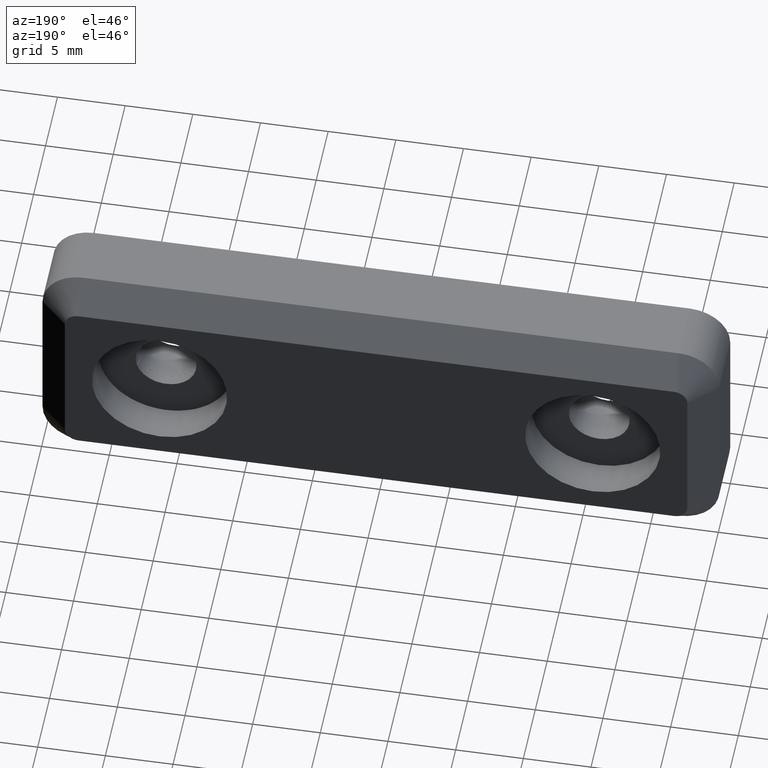
[diagram: clean part render]
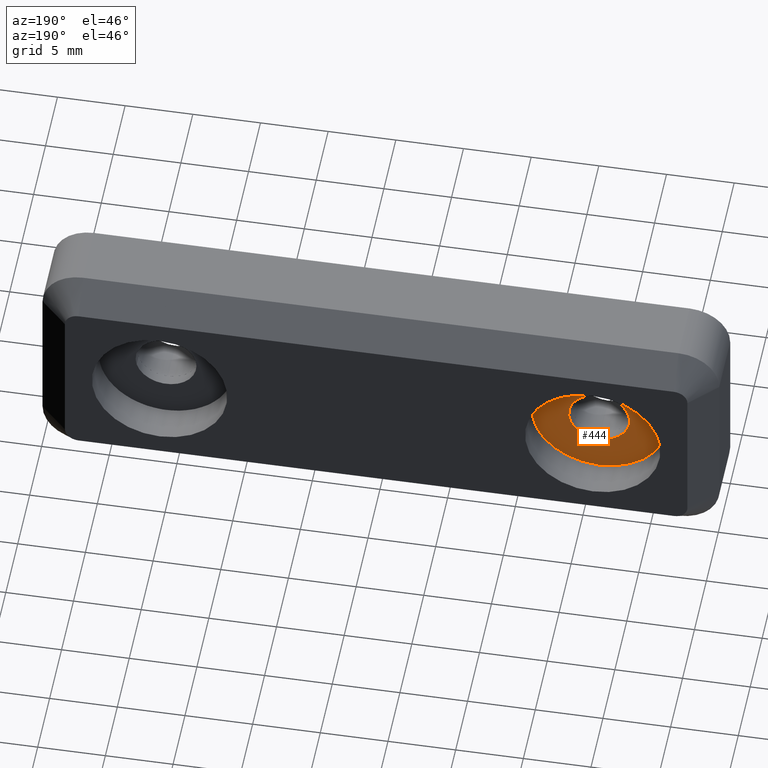
[diagram: same view with one face highlighted and labeled with its STEP entity id]
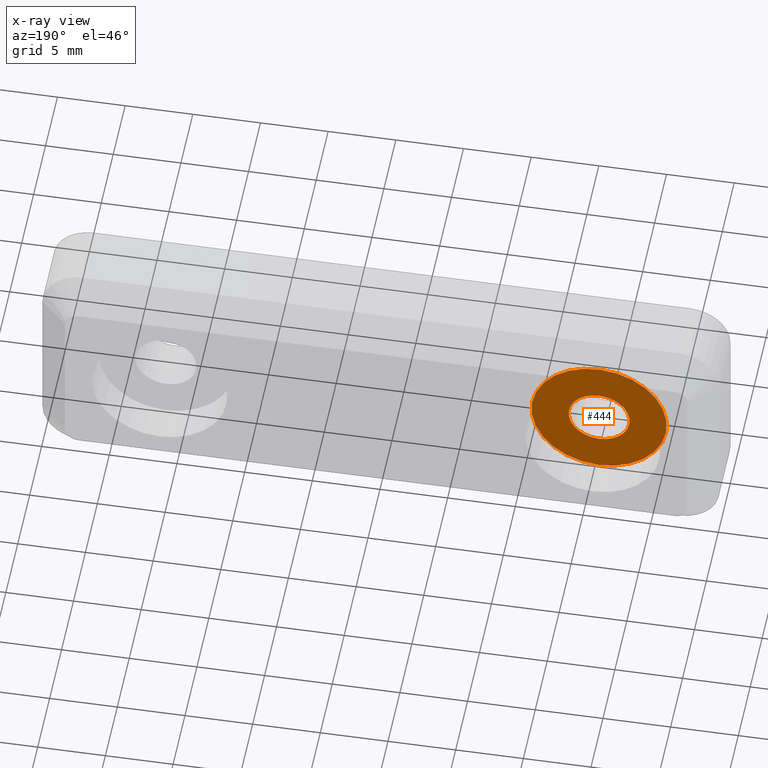
[diagram: x-ray of the same camera — body ghosted, the highlighted face saturated]
A machine part, auxiliary view. The second image highlights one B-rep face of the part: STEP entity #444.
The next image is the same camera in x-ray: the body ghosted, the highlighted face saturated — about 0% of this face is hidden behind the body in this view.
In plain terms, the highlighted planar face has unit normal (-0, 1, -0).
Its self-contained STEP definition (entity closure, byte-faithful):
#60=FACE_BOUND('',#129,.T.);
#88=FACE_OUTER_BOUND('',#128,.T.);
#128=EDGE_LOOP('',(#400));
#129=EDGE_LOOP('',(#401));
#153=CIRCLE('',#496,2.25);
#154=CIRCLE('',#498,5.);
#245=VERTEX_POINT('',#759);
#246=VERTEX_POINT('',#762);
#297=EDGE_CURVE('',#245,#245,#153,.T.);
#298=EDGE_CURVE('',#246,#246,#154,.T.);
#400=ORIENTED_EDGE('',*,*,#298,.T.);
#401=ORIENTED_EDGE('',*,*,#297,.F.);
#416=PLANE('',#500);
#444=ADVANCED_FACE('',(#88,#60),#416,.T.);
#496=AXIS2_PLACEMENT_3D('',#760,#630,#631);
#498=AXIS2_PLACEMENT_3D('',#763,#634,#635);
#500=AXIS2_PLACEMENT_3D('',#766,#638,#639);
#630=DIRECTION('center_axis',(0.,1.,0.));
#631=DIRECTION('ref_axis',(0.,0.,1.));
#634=DIRECTION('center_axis',(0.,1.,0.));
#635=DIRECTION('ref_axis',(0.,0.,1.));
#638=DIRECTION('center_axis',(0.,1.,0.));
#639=DIRECTION('ref_axis',(0.,0.,1.));
#759=CARTESIAN_POINT('',(-2.75545529808154E-16,0.8,2.25));
#760=CARTESIAN_POINT('Origin',(0.,0.8,0.));
#762=CARTESIAN_POINT('',(-6.12323399573677E-16,0.8,5.));
#763=CARTESIAN_POINT('Origin',(0.,0.8,0.));
#766=CARTESIAN_POINT('Origin',(0.,0.8,0.));